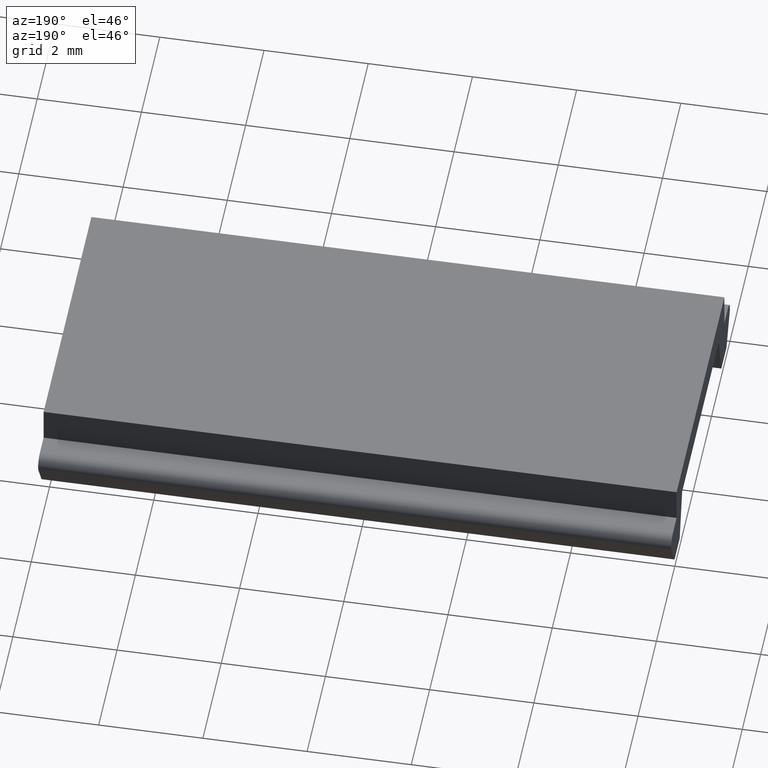
[diagram: clean part render]
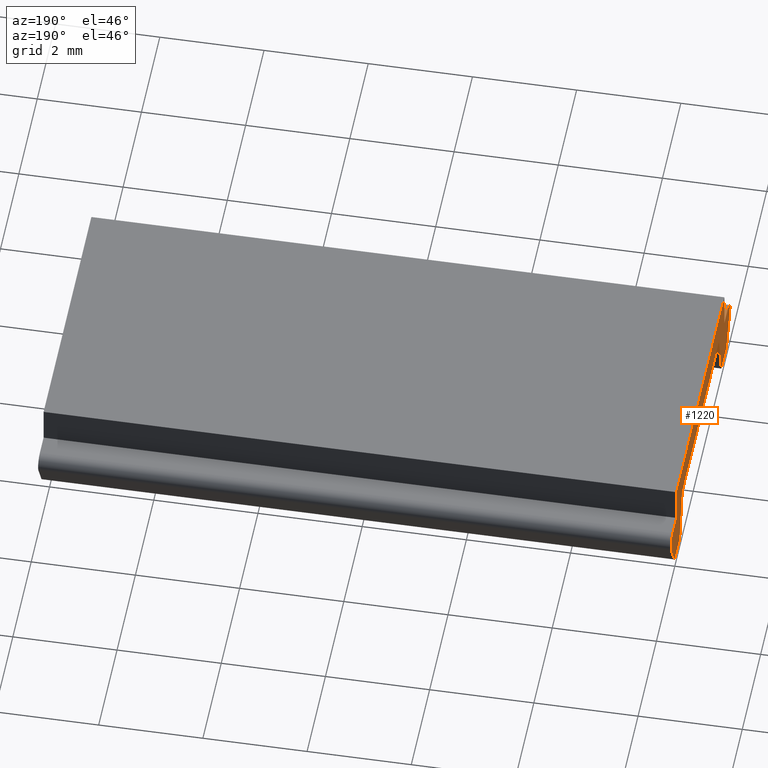
[diagram: same view with one face highlighted and labeled with its STEP entity id]
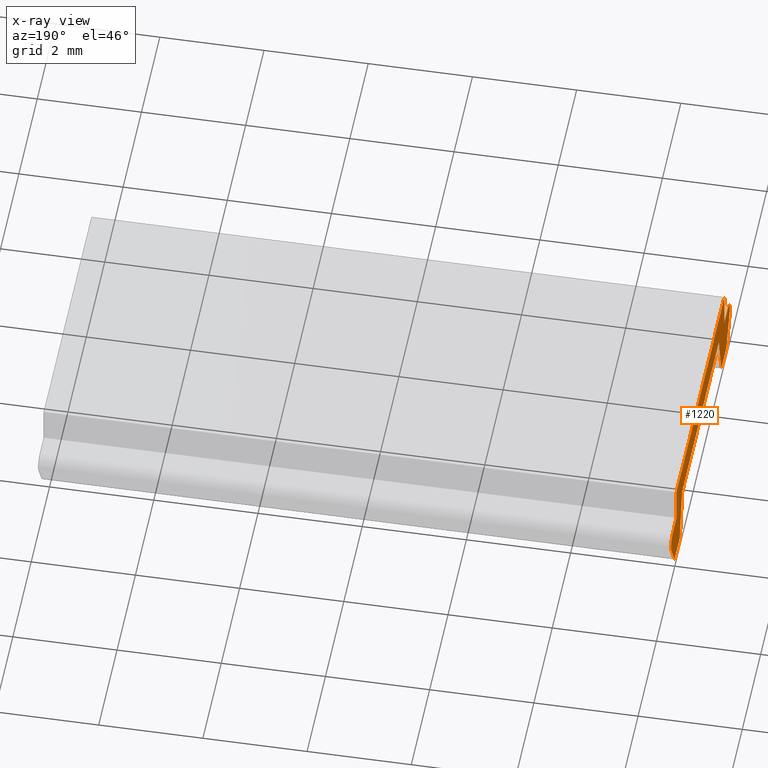
[diagram: x-ray of the same camera — body ghosted, the highlighted face saturated]
A machine part, auxiliary view. The second image highlights one B-rep face of the part: STEP entity #1220.
The next image is the same camera in x-ray: the body ghosted, the highlighted face saturated — about 0% of this face is hidden behind the body in this view.
In plain terms, the highlighted planar face has unit normal (-1, 0, 0).
Its self-contained STEP definition (entity closure, byte-faithful):
#10=CARTESIAN_POINT('',(3.25171605650094,-2.,1.30000000000155));
#20=DIRECTION('',(-3.42113882891801E-49,-1.,0.));
#30=DIRECTION('',(0.98480775301208,-3.36916404284913E-49,
0.173648177667655));
#40=AXIS2_PLACEMENT_3D('',#10,#20,#30);
#50=PLANE('',#40);
#60=CARTESIAN_POINT('',(3.32224684878486,-2.,0.900000000000214));
#70=DIRECTION('',(-1.,3.42113882891801E-49,-1.29901644996266E-12));
#80=VECTOR('',#70,1.);
#90=LINE('',#60,#80);
#100=CARTESIAN_POINT('',(6.1999936952603,-2.,0.900000000003953));
#110=VERTEX_POINT('',#100);
#120=CARTESIAN_POINT('',(5.79881796228878,-2.,0.900000000003431));
#130=VERTEX_POINT('',#120);
#140=EDGE_CURVE('',#110,#130,#90,.T.);
#150=ORIENTED_EDGE('',*,*,#140,.T.);
#160=CARTESIAN_POINT('',(6.19999352896042,-2.,0.70117547089784));
#170=DIRECTION('',(-3.42113882891801E-49,-1.,0.));
#180=DIRECTION('',(0.98480775301208,-3.36916404284913E-49,
0.173648177667655));
#190=AXIS2_PLACEMENT_3D('',#160,#170,#180);
#200=CIRCLE('',#190,0.198824529108709);
#210=CARTESIAN_POINT('',(6.37202304304583,-2.,0.601490769675634));
#220=VERTEX_POINT('',#210);
#230=EDGE_CURVE('',#220,#110,#200,.T.);
#240=ORIENTED_EDGE('',*,*,#230,.T.);
#250=CARTESIAN_POINT('',(7.17467322075392,-2.,1.99172319222589));
#260=DIRECTION('',(0.499999586205083,-1.71056799880915E-49,
0.866025642688914));
#270=VECTOR('',#260,1.);
#280=LINE('',#250,#270);
#290=CARTESIAN_POINT('',(6.02475256845767,-2.,3.78763687081118E-12));
#300=VERTEX_POINT('',#290);
#310=EDGE_CURVE('',#300,#220,#280,.T.);
#320=ORIENTED_EDGE('',*,*,#310,.T.);
#330=CARTESIAN_POINT('',(3.48094113142307,-2.,7.54285522930331E-13));
#340=DIRECTION('',(1.,-3.42113882891801E-49,1.19254606190111E-12));
#350=VECTOR('',#340,1.);
#360=LINE('',#330,#350);
#370=CARTESIAN_POINT('',(5.46696525111425,-2.,3.12283532366564E-12));
#380=VERTEX_POINT('',#370);
#390=EDGE_CURVE('',#380,#300,#360,.T.);
#400=ORIENTED_EDGE('',*,*,#390,.T.);
#410=CARTESIAN_POINT('',(5.03440517284383,-2.,1.61433618942948));
#420=DIRECTION('',(0.258819045103242,-8.85455884866183E-50,
-0.965925826288875));
#430=VECTOR('',#420,1.);
#440=LINE('',#410,#430);
#450=CARTESIAN_POINT('',(5.19901605868237,-2.,1.00000000000297));
#460=VERTEX_POINT('',#450);
#470=EDGE_CURVE('',#460,#380,#440,.T.);
#480=ORIENTED_EDGE('',*,*,#470,.T.);
#490=CARTESIAN_POINT('',(3.3046141507137,-2.,1.00000000000157));
#500=DIRECTION('',(1.,-3.42113882891801E-49,7.41434691420295E-13));
#510=VECTOR('',#500,1.);
#520=LINE('',#490,#510);
#530=CARTESIAN_POINT('',(1.198619865895,-2.,1.00000000000001));
#540=VERTEX_POINT('',#530);
#550=EDGE_CURVE('',#540,#460,#520,.T.);
#560=ORIENTED_EDGE('',*,*,#550,.T.);
#570=CARTESIAN_POINT('',(1.18117862033904,-2.,0.934908385437702));
#580=DIRECTION('',(0.258819045101854,-8.85455884861435E-50,
0.965925826289247));
#590=VECTOR('',#580,1.);
#600=LINE('',#570,#590);
#610=CARTESIAN_POINT('',(0.930670673464537,-2.,-2.77999845366139E-13));
#620=VERTEX_POINT('',#610);
#630=EDGE_CURVE('',#620,#540,#600,.T.);
#640=ORIENTED_EDGE('',*,*,#630,.T.);
#650=CARTESIAN_POINT('',(3.48094113142325,-2.,-2.78221889971064E-13));
#660=DIRECTION('',(1.,-3.42113882891801E-49,-2.77555756156289E-17));
#670=VECTOR('',#660,1.);
#680=LINE('',#650,#670);
#690=CARTESIAN_POINT('',(0.372883356121179,-2.,-2.77999845366139E-13));
#700=VERTEX_POINT('',#690);
#710=EDGE_CURVE('',#700,#620,#680,.T.);
#720=ORIENTED_EDGE('',*,*,#710,.T.);
#730=CARTESIAN_POINT('',(-0.0423296762644876,-2.,0.719170861624918));
#740=DIRECTION('',(0.499999586206395,-1.71056799881364E-49,
-0.866025642688156));
#750=VECTOR('',#740,1.);
#760=LINE('',#730,#750);
#770=CARTESIAN_POINT('',(0.0256128815321159,-2.,0.601490769671017));
#780=VERTEX_POINT('',#770);
#790=EDGE_CURVE('',#780,#700,#760,.T.);
#800=ORIENTED_EDGE('',*,*,#790,.T.);
#810=CARTESIAN_POINT('',(0.197642395617414,-2.,0.701175470893366));
#820=DIRECTION('',(-3.42113882891801E-49,-1.,0.));
#830=DIRECTION('',(0.98480775301208,-3.36916404284913E-49,
0.173648177667655));
#840=AXIS2_PLACEMENT_3D('',#810,#820,#830);
#850=CIRCLE('',#840,0.198824529108738);
#860=CARTESIAN_POINT('',(0.197642229317264,-2.,0.900000000002034));
#870=VERTEX_POINT('',#860);
#880=EDGE_CURVE('',#870,#780,#850,.T.);
#890=ORIENTED_EDGE('',*,*,#880,.T.);
#900=CARTESIAN_POINT('',(3.32224684878444,-2.,0.900000000002615));
#910=DIRECTION('',(1.,-3.42113882891801E-49,1.85934601049098E-13));
#920=VECTOR('',#910,1.);
#930=LINE('',#900,#920);
#940=CARTESIAN_POINT('',(0.598817962288826,-2.,0.900000000002109));
#950=VERTEX_POINT('',#940);
#960=EDGE_CURVE('',#870,#950,#930,.T.);
#970=ORIENTED_EDGE('',*,*,#960,.F.);
#980=CARTESIAN_POINT('',(0.598817962288898,-2.,0.832222488919884));
#990=DIRECTION('',(1.06326059068351E-12,-3.63756209204566E-61,-1.));
#1000=VECTOR('',#990,1.);
#1010=LINE('',#980,#1000);
#1020=CARTESIAN_POINT('',(0.598817962288082,-2.,1.59999999999953));
#1030=VERTEX_POINT('',#1020);
#1040=EDGE_CURVE('',#1030,#950,#1010,.T.);
#1050=ORIENTED_EDGE('',*,*,#1040,.T.);
#1060=CARTESIAN_POINT('',(3.19881796228819,-2.,1.60000000000147));
#1070=DIRECTION('',(-1.,3.42113882891801E-49,-7.45070671825943E-13));
#1080=VECTOR('',#1070,1.);
#1090=LINE('',#1060,#1080);
#1100=CARTESIAN_POINT('',(5.79881796228829,-2.,1.6000000000034));
#1110=VERTEX_POINT('',#1100);
#1120=EDGE_CURVE('',#1110,#1030,#1090,.T.);
#1130=ORIENTED_EDGE('',*,*,#1120,.T.);
#1140=CARTESIAN_POINT('',(5.79881796228819,-2.,1.74912278860772));
#1150=DIRECTION('',(-6.94277968449342E-13,2.37522131592436E-61,1.));
#1160=VECTOR('',#1150,1.);
#1170=LINE('',#1140,#1160);
#1180=EDGE_CURVE('',#130,#1110,#1170,.T.);
#1190=ORIENTED_EDGE('',*,*,#1180,.T.);
#1200=EDGE_LOOP('',(#1190,#1130,#1050,#970,#890,#800,#720,#640,#560,#480
,#400,#320,#240,#150));
#1210=FACE_OUTER_BOUND('',#1200,.T.);
#1220=ADVANCED_FACE('',(#1210),#50,.T.);